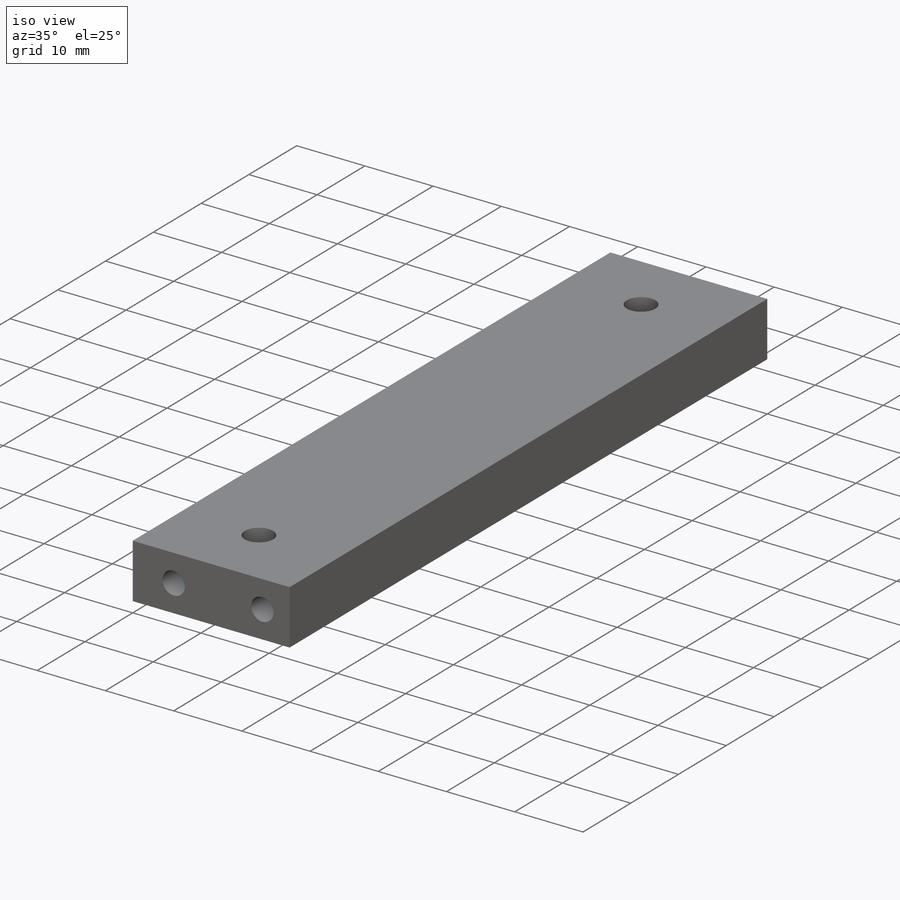
[diagram: iso view]
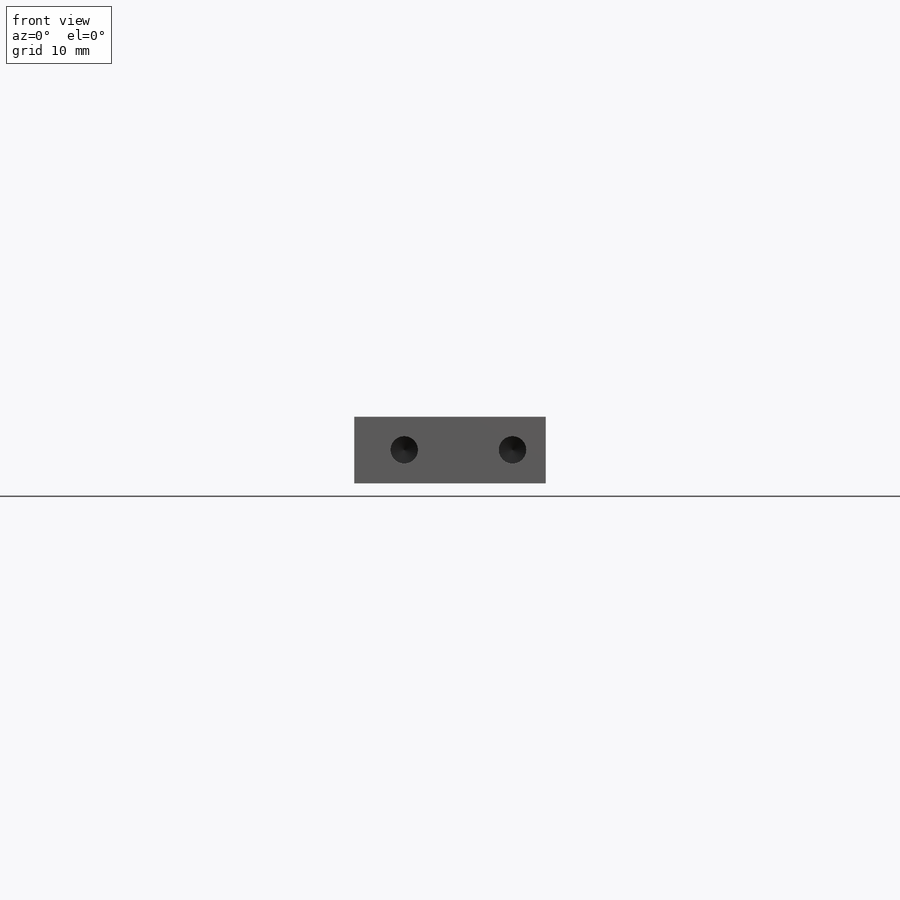
[diagram: front view]
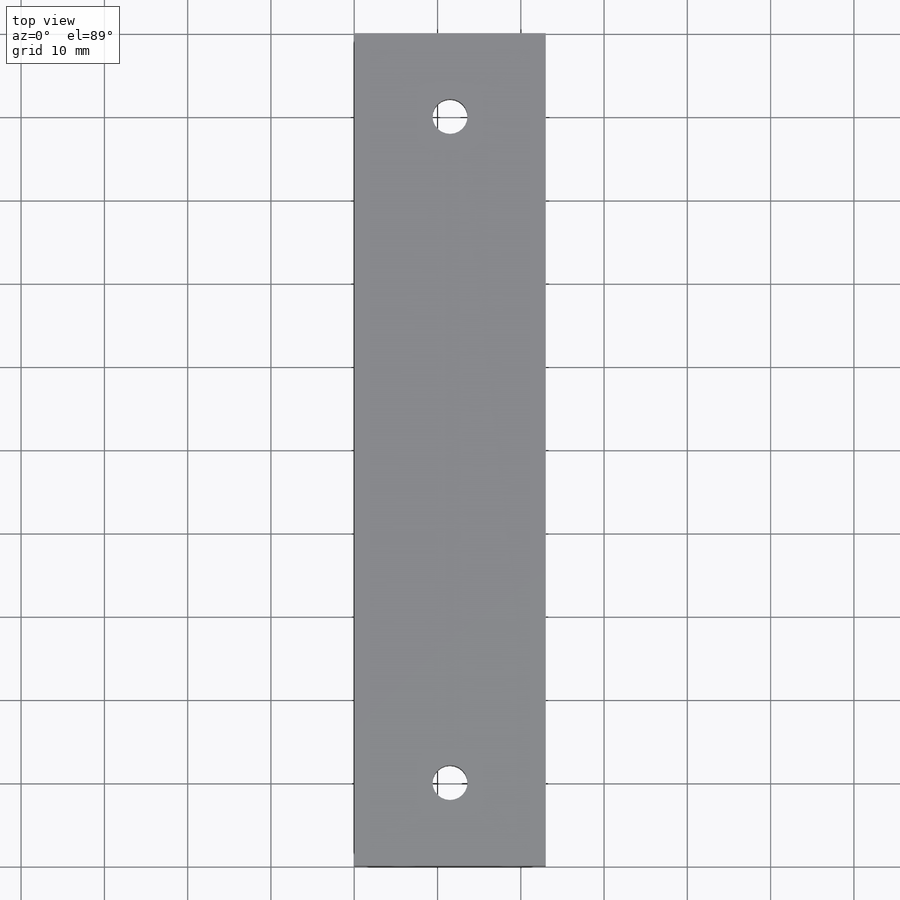
[diagram: top view]
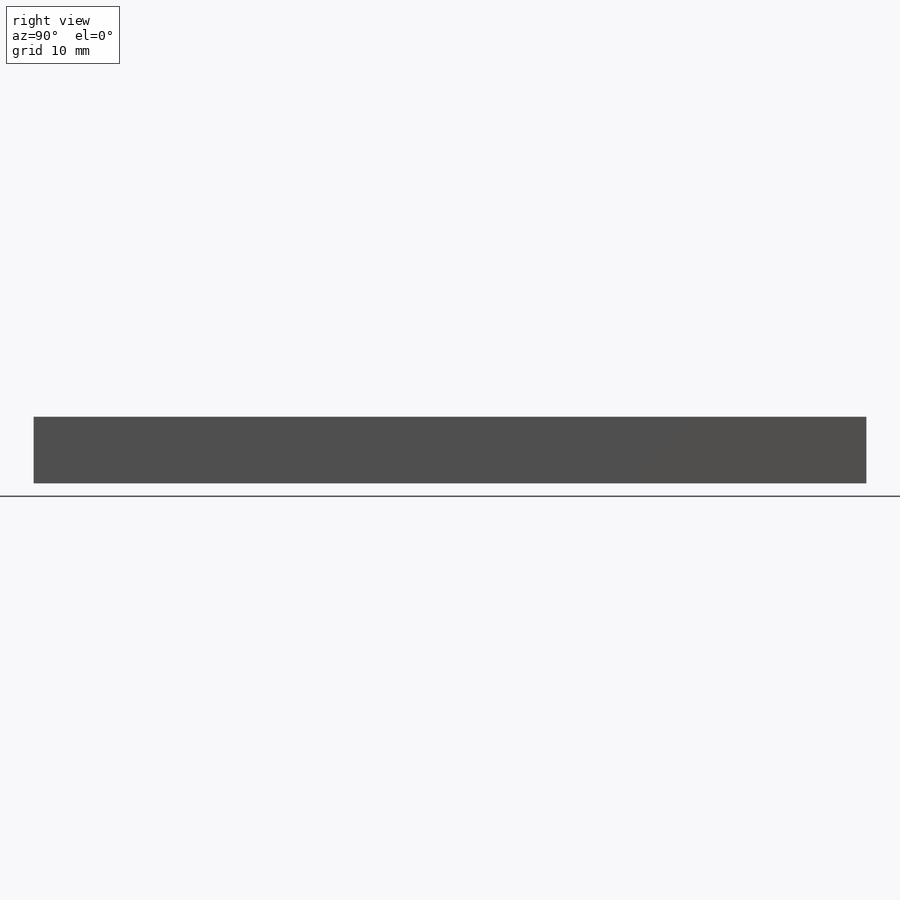
[diagram: right view]
SOLIDWORKS PART (.sldprt)
format: sldprt  version: not decoded by parser v0  size: 423,424 bytes
history: native  units: mm
features: sketch x11, thread x7, hole x3, material x1, extrude x1 (+13 scaffold rows collapsed)
feature tree (36):
  scaffold x13  (default folders/planes/origin — collapsed)
  material  "Material <not specified>"
  sketch  "Sketch3"  dims[D1=8.0mm]
  extrude  "Extrude1"  Depth=100mm
  sketch  "Sketch4"  dims[D1=10.0mm]
  hole  "M5 Tapped Hole1"  Diameter=4.2mm Depth=8mm
  sketch  "3DSketch1"
  sketch  "Sketch6"  dims[hole-wizard template sketch: 60 standard entries collapsed; hole parameters kept: c18.Thru Tap Drill Depth=8.0mm]
  thread  "Hole Thread1"  Diameter=5mm  [1 undecoded]
  thread  "Hole Thread2"  Diameter=5mm  [1 undecoded]
  sketch  "Sketch7"  dims[D1=6.0mm]
  sketch  "Sketch8"  dims[D1=6.0mm]
  hole  "M4 Tapped Hole1"  Diameter=3.3mm Depth=10mm
  sketch  "3DSketch2"
  sketch  "Sketch9"  dims[hole-wizard template sketch: 50 standard entries collapsed; hole parameters above]
  thread  "Hole Thread3"  Diameter=8mm  [1 undecoded]
  thread  "Hole Thread4"  Diameter=8mm  [1 undecoded]
  thread  "Hole Thread5"  Diameter=8mm  [1 undecoded]
  thread  "Hole Thread6"  Diameter=8mm  [1 undecoded]
  sketch  "Sketch11"
  hole  "M3 Tapped Hole1"  Diameter=2.5mm Depth=2.35mm
  sketch  "3DSketch4"
  sketch  "Sketch12"  dims[hole-wizard template sketch: 60 standard entries collapsed; hole parameters kept: c18.Thru Tap Drill Depth=2.35mm]
  thread  "Hole Thread7"  Diameter=3mm  [1 undecoded]
decode coverage: 18 of 22 modeling features carry decoded parameters
note: ~ marks probable driven/reference dimensions
note: 7 parameter values undecoded
note: suppression state not decoded; provenance and decode notes live in map.json
